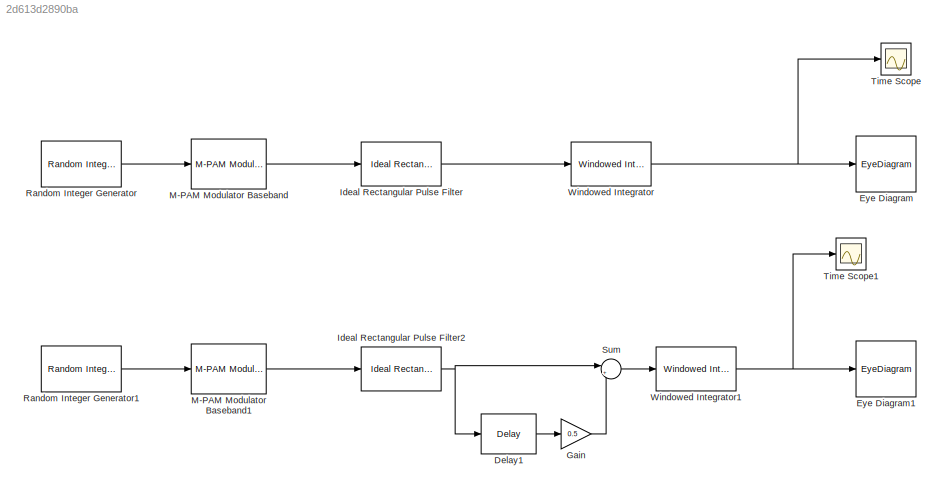
MODEL slx_2d613d2890ba
KIND model
CONFIG AbsTol = auto
CONFIG EnableMultiTasking = off
CONFIG FixedStep = auto
CONFIG MaxStep = auto
CONFIG MinStep = auto
CONFIG RelTol = 1e-3
CONFIG SampleTimeConstraint = Unconstrained
CONFIG Solver = VariableStepAuto
CONFIG SolverName = VariableStepAuto
CONFIG StartTime = 0.0
CONFIG StopTime = Inf
BLOCK [Delay] Delay1
  DelayLength = 10
  InputPortMap = u0
  InputProcessing = Columns as channels (frame based)
  Ports = [1, 1]
BLOCK [EyeDiagram] Eye Diagram
  Ports = [1]
  ScopeSpecificationString = comm.scopes.EyeDiagramBlockCfg('CurrentConfiguration', extmgr.ConfigurationSet(extmgr.Configuration('Core','General UI',true),extmgr.Configuration('Core','Source UI',true),extmgr.Configuration('Sources','WiredSimulink',true),extmgr.Configuration('Sources','Simulink',false),extmgr.Configuration('Sources','File',false),extmgr.Configuration('Sources','Workspace',false),extmgr.Configuration('Sources',...<+2112ch>
BLOCK [EyeDiagram] Eye Diagram1
  Ports = [1]
  ScopeSpecificationString = comm.scopes.EyeDiagramBlockCfg('CurrentConfiguration', extmgr.ConfigurationSet(extmgr.Configuration('Core','General UI',true),extmgr.Configuration('Core','Source UI',true),extmgr.Configuration('Sources','WiredSimulink',true),extmgr.Configuration('Sources','Simulink',false),extmgr.Configuration('Sources','File',false),extmgr.Configuration('Sources','Workspace',false),extmgr.Configuration('Sources',...<+2092ch>
BLOCK [Gain] Gain
  Gain = 0.5
BLOCK [Reference] Ideal Rectangular Pulse Filter  REF=commfilt2/Ideal Rectangular
Pulse Filter
  Ports = [1, 1]
  SourceBlock = commfilt2/Ideal Rectangular\nPulse Filter
  SourceProductBaseCode = CM
  SourceType = Ideal Rectangular Pulse Filter
  UserDataPersistent = on
BLOCK [Reference] Ideal Rectangular Pulse Filter2  REF=commfilt2/Ideal Rectangular
Pulse Filter
  Ports = [1, 1]
  SourceBlock = commfilt2/Ideal Rectangular\nPulse Filter
  SourceProductBaseCode = CM
  SourceType = Ideal Rectangular Pulse Filter
  UserDataPersistent = on
BLOCK [Reference] M-PAM Modulator Baseband  REF=commdigbbndam3/M-PAM
Modulator
Baseband
  Ports = [1, 1]
  SourceBlock = commdigbbndam3/M-PAM\nModulator\nBaseband
  SourceProductBaseCode = CM
  SourceType = M-PAM Modulator Baseband
BLOCK [Reference] M-PAM Modulator Baseband1  REF=commdigbbndam3/M-PAM
Modulator
Baseband
  Ports = [1, 1]
  SourceBlock = commdigbbndam3/M-PAM\nModulator\nBaseband
  SourceProductBaseCode = CM
  SourceType = M-PAM Modulator Baseband
BLOCK [Reference] Random Integer Generator  REF=commrandsrc3/Random Integer
Generator
  Ports = [0, 1]
  SourceBlock = commrandsrc3/Random Integer\nGenerator
  SourceProductBaseCode = CM
  SourceType = Random Integer Generator
BLOCK [Reference] Random Integer Generator1  REF=commrandsrc3/Random Integer
Generator
  Ports = [0, 1]
  SourceBlock = commrandsrc3/Random Integer\nGenerator
  SourceProductBaseCode = CM
  SourceType = Random Integer Generator
BLOCK [Sum] Sum
  Inputs = |+-
  Ports = [2, 1]
BLOCK [Scope] Time Scope
  DefaultConfigurationName = spbscopes.TimeScopeBlockCfg
  Floating = off
  NumInputPorts = 1
  Ports = [1]
  ScopeSpecificationString = spbscopes.TimeScopeBlockCfg('CurrentConfiguration', extmgr.ConfigurationSet(extmgr.Configuration('Core','General UI',true),extmgr.Configuration('Core','Source UI',true),extmgr.Configuration('Sources','WiredSimulink',true),extmgr.Configuration('Visuals','Time Domain',true,'DisplayPropertyDefaults',struct('MinYLimReal','-1.25','MaxYLimReal','1.25','YLabelReal','Amplitude','MinYLimMag','0.00000','Max...<+1405ch>
  UserDataPersistent = on
BLOCK [Scope] Time Scope1
  DefaultConfigurationName = spbscopes.TimeScopeBlockCfg
  Floating = off
  NumInputPorts = 1
  Ports = [1]
  ScopeSpecificationString = spbscopes.TimeScopeBlockCfg('CurrentConfiguration', extmgr.ConfigurationSet(extmgr.Configuration('Core','General UI',true),extmgr.Configuration('Core','Source UI',true),extmgr.Configuration('Sources','WiredSimulink',true,'DataLoggingVariableName','ScopeData1'),extmgr.Configuration('Visuals','Time Domain',true,'DisplayPropertyDefaults',struct('MinYLimReal','-1.875','MaxYLimReal','1.875','YLabelReal...<+1452ch>
  UserDataPersistent = on
BLOCK [Reference] Windowed Integrator  REF=commfilt2/Windowed
Integrator
  Ports = [1, 1]
  SourceBlock = commfilt2/Windowed\nIntegrator
  SourceProductBaseCode = CM
  SourceType = Windowed Integrator
  UserDataPersistent = on
BLOCK [Reference] Windowed Integrator1  REF=commfilt2/Windowed
Integrator
  Ports = [1, 1]
  SourceBlock = commfilt2/Windowed\nIntegrator
  SourceProductBaseCode = CM
  SourceType = Windowed Integrator
  UserDataPersistent = on
LINE Delay1:1 -> Gain:1
LINE Gain:1 -> Sum:2
NET Ideal Rectangular Pulse Filter2:1 -> Delay1:1, Sum:1
LINE Ideal Rectangular Pulse Filter:1 -> Windowed Integrator:1
LINE M-PAM Modulator Baseband1:1 -> Ideal Rectangular Pulse Filter2:1
LINE M-PAM Modulator Baseband:1 -> Ideal Rectangular Pulse Filter:1
LINE Random Integer Generator1:1 -> M-PAM Modulator Baseband1:1
LINE Random Integer Generator:1 -> M-PAM Modulator Baseband:1
LINE Sum:1 -> Windowed Integrator1:1
NET Windowed Integrator1:1 -> Eye Diagram1:1, Time Scope1:1
NET Windowed Integrator:1 -> Eye Diagram:1, Time Scope:1
note: NET lines group one-source signal fan-out (src -> all destinations, sorted); 1:1 wires keep LINE
